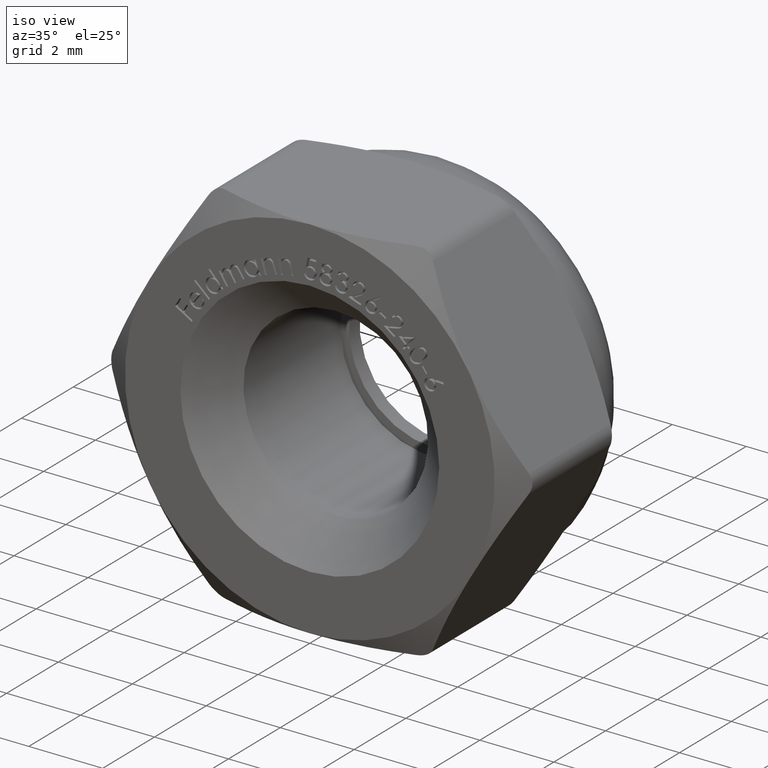
[diagram: clean part render]
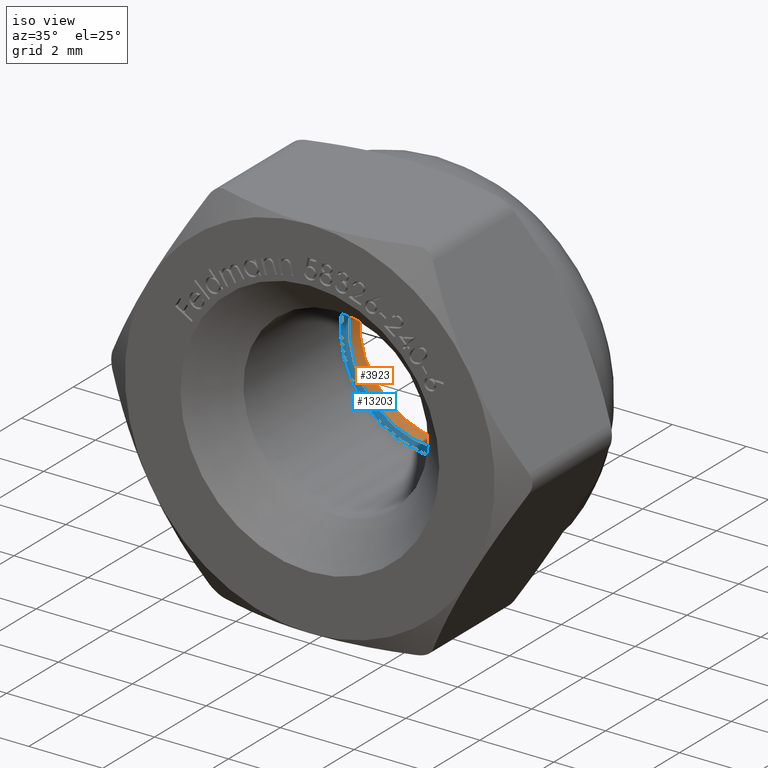
[diagram: same view with the hole feature highlighted: cylindrical wall and planar end face, labeled with their STEP entity ids]
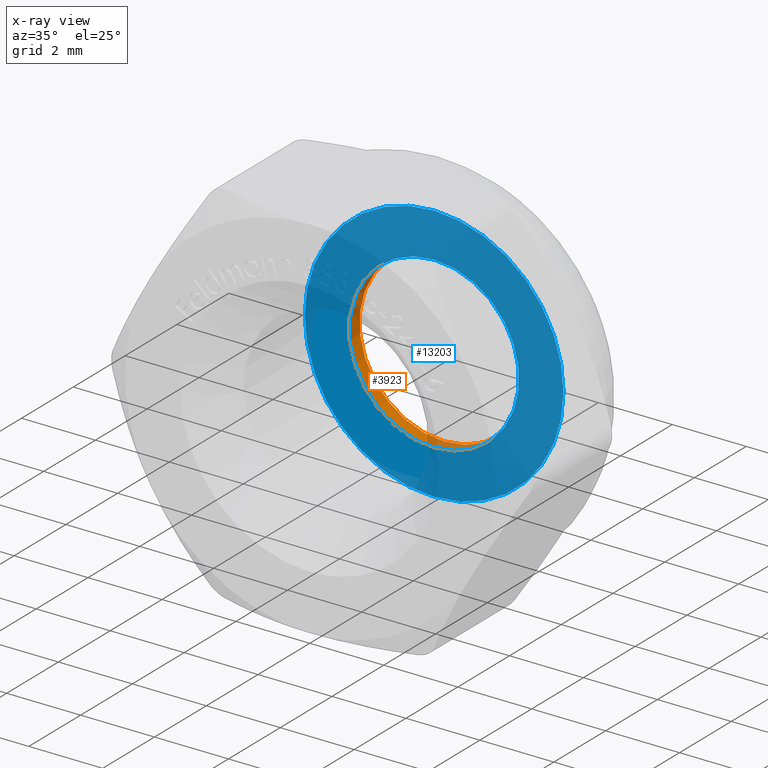
[diagram: x-ray of the same camera — body ghosted, the hole faces saturated]
A machine part, iso view. The highlighted faces form one hole feature of diameter 4.6 mm: the cylindrical wall (entity #3923, orange) and its adjacent planar end face (entity #13203, blue) — they share a circular edge in the B-rep.
The next image is the same camera in x-ray (body ghosted, the hole faces saturated) — the bore reads through the body.
Wall:
#253 = EDGE_LOOP ( 'NONE', ( #12379 ) ) ;
#580 = AXIS2_PLACEMENT_3D ( 'NONE', #11960, #7250, #2403 ) ;
#1673 = DIRECTION ( 'NONE',  ( 0.000000000000000000, 1.000000000000000000, 0.000000000000000000 ) ) ;
#1722 = EDGE_CURVE ( 'NONE', #15553, #15553, #8523, .T. ) ;
#2403 = DIRECTION ( 'NONE',  ( 0.000000000000000000, 0.000000000000000000, 1.000000000000000000 ) ) ;
#3187 = ORIENTED_EDGE ( 'NONE', *, *, #1722, .F. ) ;
#3833 = CARTESIAN_POINT ( 'NONE',  ( 0.000000000000000000, 13.14949493661166358, 0.000000000000000000 ) ) ;
#3923 = ADVANCED_FACE ( 'NONE', ( #5996, #10783 ), #6750, .F. ) ;
#5114 = AXIS2_PLACEMENT_3D ( 'NONE', #3833, #14848, #7513 ) ;
#5214 = VERTEX_POINT ( 'NONE', #14714 ) ;
#5996 = FACE_OUTER_BOUND ( 'NONE', #13685, .T. ) ;
#6750 = CYLINDRICAL_SURFACE ( 'NONE', #5114, 2.299999999999999378 ) ;
#7250 = DIRECTION ( 'NONE',  ( 0.000000000000000000, 1.000000000000000000, 0.000000000000000000 ) ) ;
#7436 = CARTESIAN_POINT ( 'NONE',  ( 0.000000000000000000, 2.800000000000000266, 2.299999999999999378 ) ) ;
#7459 = EDGE_CURVE ( 'NONE', #5214, #5214, #14339, .T. ) ;
#7513 = DIRECTION ( 'NONE',  ( 0.000000000000000000, 0.000000000000000000, -1.000000000000000000 ) ) ;
#8523 = CIRCLE ( 'NONE', #580, 2.299999999999999378 ) ;
#8999 = CARTESIAN_POINT ( 'NONE',  ( 0.000000000000000000, 3.199999999999999734, 0.000000000000000000 ) ) ;
#9402 = AXIS2_PLACEMENT_3D ( 'NONE', #8999, #1673, #10226 ) ;
#10226 = DIRECTION ( 'NONE',  ( 0.000000000000000000, 0.000000000000000000, 1.000000000000000000 ) ) ;
#10783 = FACE_OUTER_BOUND ( 'NONE', #253, .T. ) ;
#11960 = CARTESIAN_POINT ( 'NONE',  ( 0.000000000000000000, 2.800000000000000266, 0.000000000000000000 ) ) ;
#12379 = ORIENTED_EDGE ( 'NONE', *, *, #7459, .T. ) ;
#13685 = EDGE_LOOP ( 'NONE', ( #3187 ) ) ;
#14339 = CIRCLE ( 'NONE', #9402, 2.299999999999999378 ) ;
#14714 = CARTESIAN_POINT ( 'NONE',  ( 0.000000000000000000, 3.199999999999999734, 2.299999999999999378 ) ) ;
#14848 = DIRECTION ( 'NONE',  ( -0.000000000000000000, -1.000000000000000000, -0.000000000000000000 ) ) ;
#15553 = VERTEX_POINT ( 'NONE', #7436 ) ;
End face:
#580 = AXIS2_PLACEMENT_3D ( 'NONE', #11960, #7250, #2403 ) ;
#1722 = EDGE_CURVE ( 'NONE', #15553, #15553, #8523, .T. ) ;
#1967 = VERTEX_POINT ( 'NONE', #11143 ) ;
#2124 = EDGE_LOOP ( 'NONE', ( #6179 ) ) ;
#2403 = DIRECTION ( 'NONE',  ( 0.000000000000000000, 0.000000000000000000, 1.000000000000000000 ) ) ;
#2699 = AXIS2_PLACEMENT_3D ( 'NONE', #5764, #9336, #10575 ) ;
#2985 = DIRECTION ( 'NONE',  ( 0.000000000000000000, 1.000000000000000000, 0.000000000000000000 ) ) ;
#4225 = DIRECTION ( 'NONE',  ( 0.000000000000000000, 0.000000000000000000, 1.000000000000000000 ) ) ;
#4728 = ORIENTED_EDGE ( 'NONE', *, *, #1722, .T. ) ;
#5299 = FACE_OUTER_BOUND ( 'NONE', #2124, .T. ) ;
#5764 = CARTESIAN_POINT ( 'NONE',  ( 0.000000000000000000, 2.800000000000000266, 0.000000000000000000 ) ) ;
#6179 = ORIENTED_EDGE ( 'NONE', *, *, #10152, .F. ) ;
#6261 = AXIS2_PLACEMENT_3D ( 'NONE', #15293, #2985, #4225 ) ;
#7250 = DIRECTION ( 'NONE',  ( 0.000000000000000000, 1.000000000000000000, 0.000000000000000000 ) ) ;
#7436 = CARTESIAN_POINT ( 'NONE',  ( 0.000000000000000000, 2.800000000000000266, 2.299999999999999378 ) ) ;
#8523 = CIRCLE ( 'NONE', #580, 2.299999999999999378 ) ;
#9336 = DIRECTION ( 'NONE',  ( 0.000000000000000000, 1.000000000000000000, 0.000000000000000000 ) ) ;
#10152 = EDGE_CURVE ( 'NONE', #1967, #1967, #10679, .T. ) ;
#10575 = DIRECTION ( 'NONE',  ( 0.000000000000000000, -0.000000000000000000, 1.000000000000000000 ) ) ;
#10679 = CIRCLE ( 'NONE', #6261, 3.499999999999999556 ) ;
#11143 = CARTESIAN_POINT ( 'NONE',  ( 0.000000000000000000, 2.800000000000000266, 3.499999999999999556 ) ) ;
#11960 = CARTESIAN_POINT ( 'NONE',  ( 0.000000000000000000, 2.800000000000000266, 0.000000000000000000 ) ) ;
#12915 = PLANE ( 'NONE',  #2699 ) ;
#13203 = ADVANCED_FACE ( 'NONE', ( #5299, #13340 ), #12915, .F. ) ;
#13340 = FACE_BOUND ( 'NONE', #14336, .T. ) ;
#14336 = EDGE_LOOP ( 'NONE', ( #4728 ) ) ;
#15293 = CARTESIAN_POINT ( 'NONE',  ( 0.000000000000000000, 2.800000000000000266, 0.000000000000000000 ) ) ;
#15553 = VERTEX_POINT ( 'NONE', #7436 ) ;